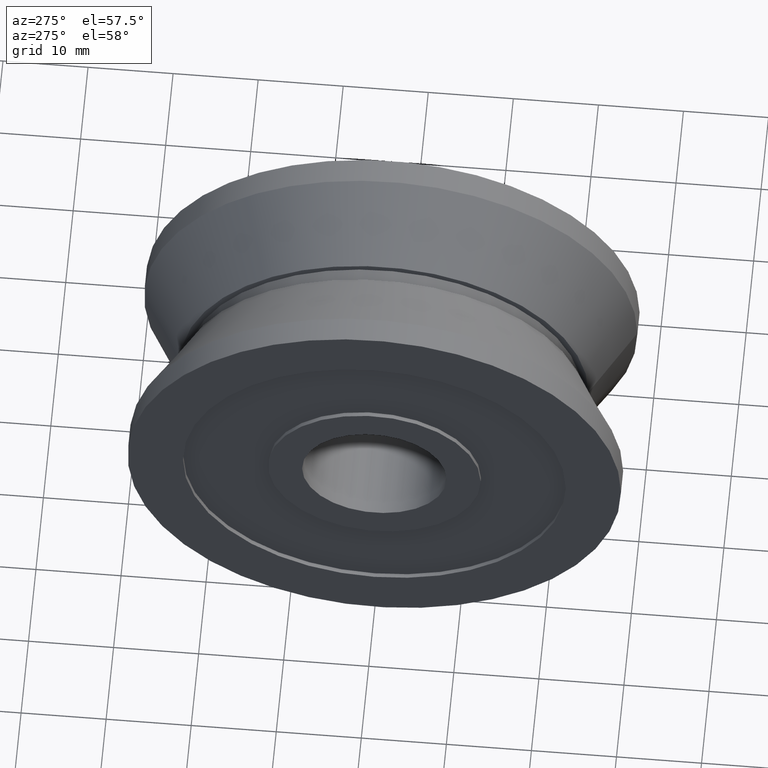
[diagram: clean part render]
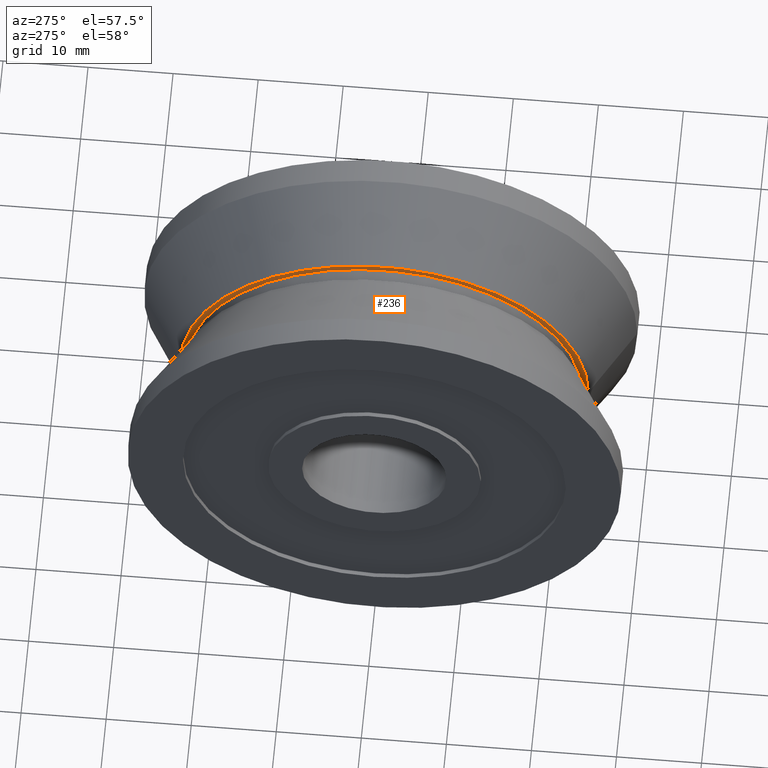
[diagram: same view with one face highlighted and labeled with its STEP entity id]
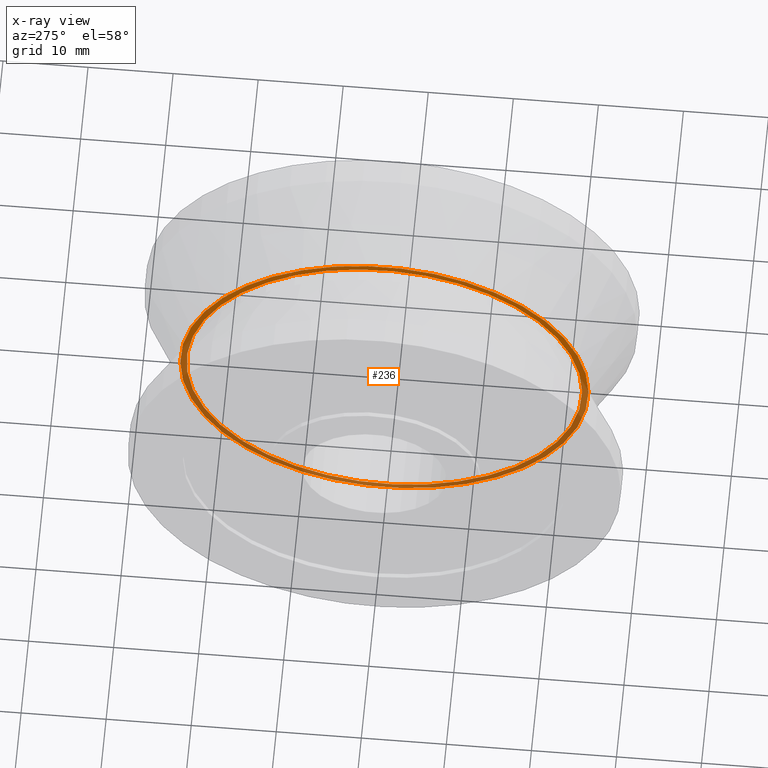
[diagram: x-ray of the same camera — body ghosted, the highlighted face saturated]
A machine part, auxiliary view. The second image highlights one B-rep face of the part: STEP entity #236.
The next image is the same camera in x-ray: the body ghosted, the highlighted face saturated — about 54% of this face is hidden behind the body in this view.
In plain terms, the highlighted planar face has unit normal (-1, 0, 0).
Its self-contained STEP definition (entity closure, byte-faithful):
#51=FACE_BOUND('',#87,.T.);
#64=FACE_OUTER_BOUND('',#86,.T.);
#86=EDGE_LOOP('',(#191));
#87=EDGE_LOOP('',(#192));
#108=CIRCLE('',#286,23.25);
#109=CIRCLE('',#288,24.0014773719376);
#126=VERTEX_POINT('',#420);
#127=VERTEX_POINT('',#424);
#148=EDGE_CURVE('',#126,#126,#108,.T.);
#150=EDGE_CURVE('',#127,#127,#109,.T.);
#191=ORIENTED_EDGE('',*,*,#150,.F.);
#192=ORIENTED_EDGE('',*,*,#148,.T.);
#223=PLANE('',#287);
#236=ADVANCED_FACE('',(#64,#51),#223,.T.);
#286=AXIS2_PLACEMENT_3D('',#421,#346,#347);
#287=AXIS2_PLACEMENT_3D('',#423,#349,#350);
#288=AXIS2_PLACEMENT_3D('',#425,#351,#352);
#346=DIRECTION('center_axis',(1.,0.,0.));
#347=DIRECTION('ref_axis',(0.,1.,0.));
#349=DIRECTION('center_axis',(-1.,0.,0.));
#350=DIRECTION('ref_axis',(0.,0.,1.));
#351=DIRECTION('center_axis',(1.,0.,0.));
#352=DIRECTION('ref_axis',(0.,1.,0.));
#420=CARTESIAN_POINT('',(0.950000000000002,-23.25,-2.8473038080176E-15));
#421=CARTESIAN_POINT('Origin',(0.950000000000002,0.,0.));
#423=CARTESIAN_POINT('Origin',(0.95,23.6257386859688,0.));
#424=CARTESIAN_POINT('',(0.949999999999999,-24.0014773719376,-2.9393332438351E-15));
#425=CARTESIAN_POINT('Origin',(0.95,0.,0.));